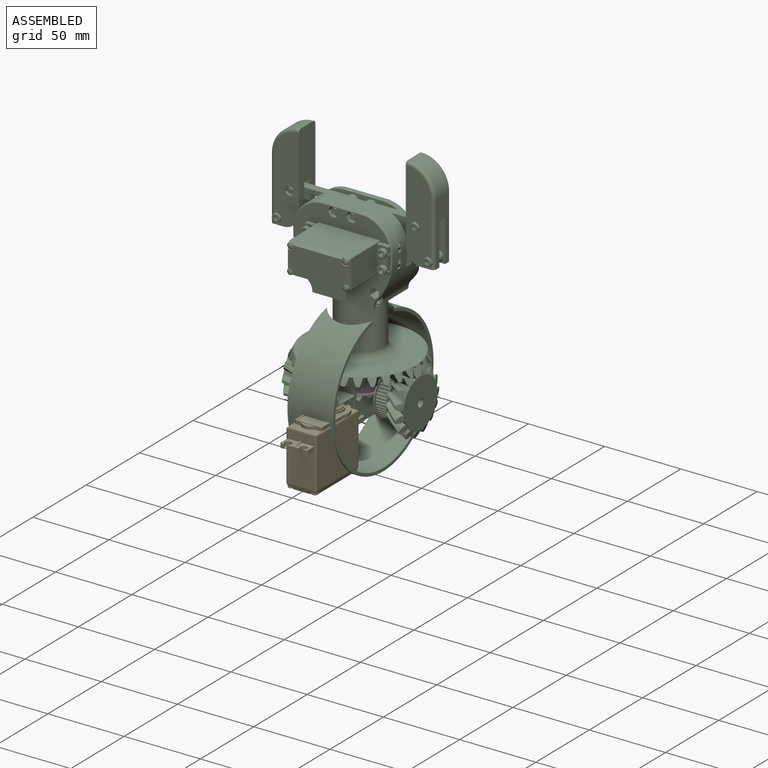
[diagram: assembled view]
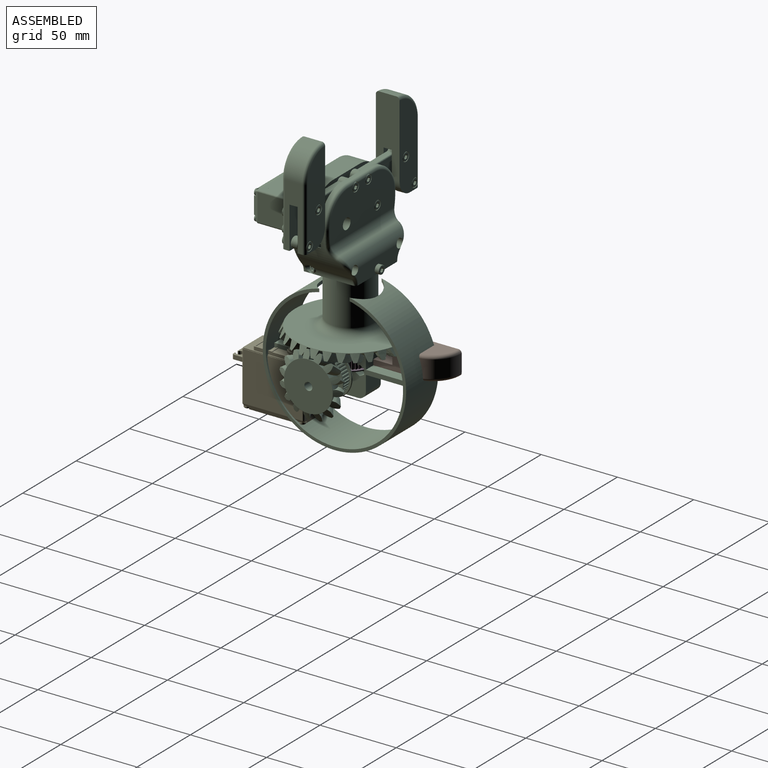
[diagram: assembled view, second angle]
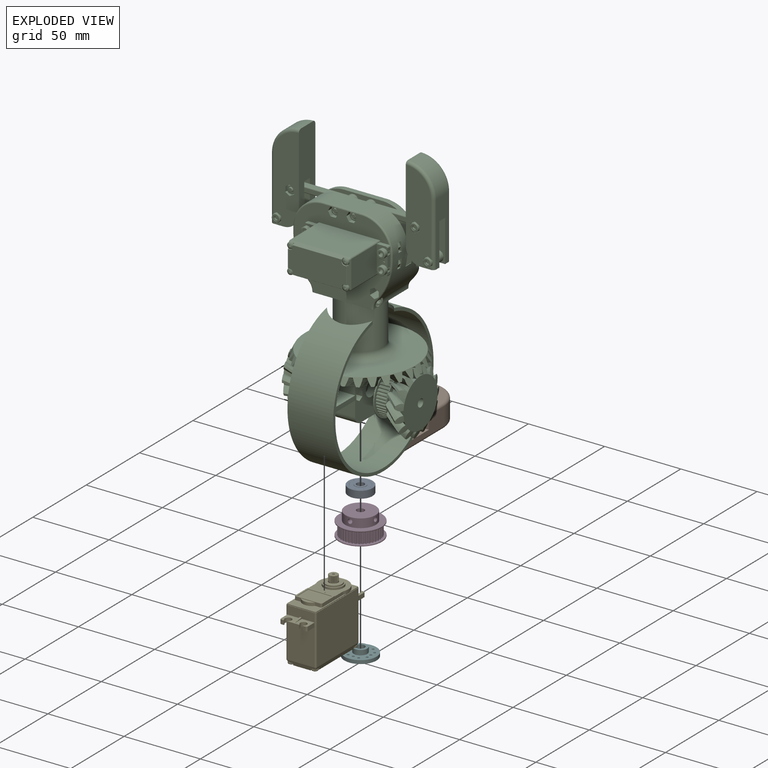
[diagram: exploded view]
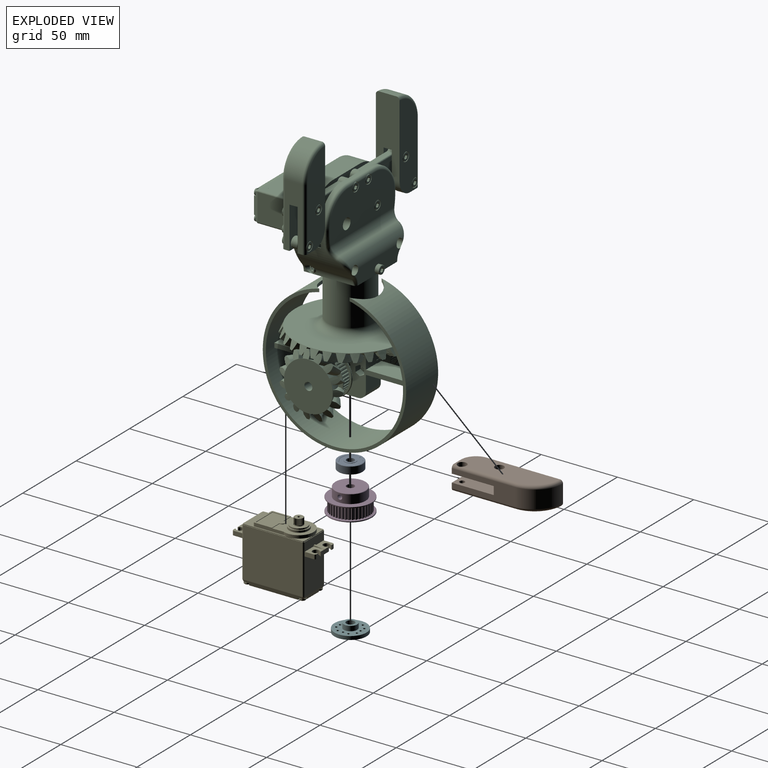
[diagram: exploded view, second angle]
FCSTD DOCUMENT  (FreeCAD 0.19R24276 (Git))
Label: AssemblyArt56
License: All rights reserved
LicenseURL: http://en.wikipedia.org/wiki/All_rights_reserved
objects: Part::FeaturePython×43, App::Link×20, PartDesign::CoordinateSystem×12, PartDesign::Line×8, App::DocumentObjectGroup×7, App::Part×6, Part::Feature×4, App::FeaturePython×1, Part::Part2DObjectPython×1, Part::Mirroring×1
note: 69 computed B-rep shape members (.brp) not serialized (recipe doc carries the construction recipe, not evaluated geometry)
EXTERNAL_REF file=Art56MotorCoverRing.FCStd obj=LCS_Art56MotorCoverRing
EXTERNAL_REF file=Art56MotorCoverRing.FCStd obj=Body
EXTERNAL_REF file=Art56MotorCoverRing.FCStd obj=LCS_BearingFix
EXTERNAL_REF file=CommonBearingFixThrough.FCStd obj=LCS_CommonBearingFixThrough
EXTERNAL_REF file=CommonBearingFixThrough.FCStd obj=Body
EXTERNAL_REF file=Art56GearPlate.FCStd obj=LCS_Art56GearPlate
EXTERNAL_REF file=Art56MotorCoverRing.FCStd obj=LCS_BigGear
EXTERNAL_REF file=Art56GearPlate.FCStd obj=Body
EXTERNAL_REF file=Art56MotorCoverRing.FCStd obj=LCS_SmallGear2
EXTERNAL_REF file=Art56SmallGear.FCStd obj=LCS_Art56SmallGear
EXTERNAL_REF file=Art56SmallGear.FCStd obj=Body
EXTERNAL_REF file=Art56MotorCoverRing.FCStd obj=LCS_SmallGear1
EXTERNAL_REF file=Art56GearPlate.FCStd obj=LCS_Bearing
EXTERNAL_REF file=Art56MotorCoverRing.FCStd obj=LCS_Bearing
EXTERNAL_REF file=Art56SmallGear.FCStd obj=LCS_Pulley
EXTERNAL_REF file=Art56GearPlate.FCStd obj=HoleAxis_2
EXTERNAL_REF file=Art56MotorCoverRing.FCStd obj=HoleAxis_2
EXTERNAL_REF file=Art56MotorCoverRing.FCStd obj=HoleAxis_1
EXTERNAL_REF file=Art56GearPlate.FCStd obj=HoleAxis_1
EXTERNAL_REF file=Art56GearPlate.FCStd obj=HoleAxis_3
EXTERNAL_REF file=Art56SmallGear.FCStd obj=HoleAxis_1
EXTERNAL_REF file=CommonBearingFixThrough.FCStd obj=HoleAxis_1
EXTERNAL_REF file=CommonBearingFixThrough.FCStd obj=HoleAxis_2
EXTERNAL_REF file=Art56MotorCoverRing.FCStd obj=HoleAxis_3
EXTERNAL_REF file=Art56GearPlate.FCStd obj=LCS_Gripper
EXTERNAL_REF file=GripperBot.FCStd obj=LCS_GripperBot
EXTERNAL_REF file=GripperBot.FCStd obj=Body
EXTERNAL_REF file=GripperBot.FCStd obj=LCS_GripperTop
EXTERNAL_REF file=GripperTop.FCStd obj=LCS_GripperTop
EXTERNAL_REF file=GripperTop.FCStd obj=Body
EXTERNAL_REF file=GripperBot.FCStd obj=LCS_Servomotor
EXTERNAL_REF file=GripperActiveArm.FCStd obj=LCS_GripperActiveArm
EXTERNAL_REF file=GripperActiveArm.FCStd obj=Body
EXTERNAL_REF file=GripperBot.FCStd obj=LCS_PassiveArm
EXTERNAL_REF file=GripperPassiveArm.FCStd obj=LCS_GripperPassiveArm
EXTERNAL_REF file=GripperPassiveArm.FCStd obj=Body
EXTERNAL_REF file=GripperArm.FCStd obj=LCS_GripperArm
EXTERNAL_REF file=GripperBot.FCStd obj=LCS_Arm1
EXTERNAL_REF file=GripperArm.FCStd obj=Body
EXTERNAL_REF file=GripperBot.FCStd obj=LCS_Arm2
EXTERNAL_REF file=GripperBot.FCStd obj=HoleAxis_9
EXTERNAL_REF file=GripperBot.FCStd obj=HoleAxis_8
EXTERNAL_REF file=GripperBot.FCStd obj=HoleAxis_3
EXTERNAL_REF file=GripperBot.FCStd obj=HoleAxis_4
EXTERNAL_REF file=GripperBot.FCStd obj=HoleAxis_6
EXTERNAL_REF file=GripperBot.FCStd obj=HoleAxis_7
EXTERNAL_REF file=GripperBot.FCStd obj=HoleAxis_11
EXTERNAL_REF file=GripperBot.FCStd obj=HoleAxis_10
EXTERNAL_REF file=GripperBot.FCStd obj=HoleAxis_5
EXTERNAL_REF file=GripperTop.FCStd obj=HoleAxis_5
EXTERNAL_REF file=GripperTop.FCStd obj=HoleAxis_6
EXTERNAL_REF file=GripperTop.FCStd obj=HoleAxis_2
EXTERNAL_REF file=GripperTop.FCStd obj=HoleAxis_3
EXTERNAL_REF file=GripperTop.FCStd obj=HoleAxis_4
EXTERNAL_REF file=GripperTop.FCStd obj=HoleAxis_1
EXTERNAL_REF file=GripperBot.FCStd obj=HoleAxis_1
EXTERNAL_REF file=GripperBot.FCStd obj=HoleAxis_2
EXTERNAL_REF file=GripperArm.FCStd obj=LCS_GripperArm_1
EXTERNAL_REF file=GripperFinger.FCStd obj=LCS_GripperFinger
EXTERNAL_REF file=GripperFinger.FCStd obj=Body
EXTERNAL_REF file=GripperFinger.FCStd obj=HoleAxis_3
EXTERNAL_REF file=GripperFinger.FCStd obj=HoleAxis_4
EXTERNAL_REF file=GripperFinger.FCStd obj=HoleAxis_1
EXTERNAL_REF file=GripperFinger.FCStd obj=HoleAxis_2
EXTERNAL_REF file=GripperActiveArm.FCStd obj=HoleAxis_3
EXTERNAL_REF file=GripperActiveArm.FCStd obj=HoleAxis_2
EXTERNAL_REF file=GripperActiveArm.FCStd obj=HoleAxis_1

FEATURE [PartDesign::CoordinateSystem] LCS_Origin
  AttacherType = Attacher::AttachEngine3D
  MapMode = 2
  Support = -> [X_Axis]
FEATURE [App::DocumentObjectGroup] Constraints
FEATURE [App::FeaturePython] Variables  # WARN: FeaturePython — macro-defined, semantics opaque (R4)
FEATURE [App::Link] Art56MotorCoverRing_Art56MotorCoverRing
  AssemblyType = Asm4EE
  AttachedBy = #LCS_Art56MotorCoverRing
  AttachedTo = Parent Assembly#LCS_Origin
  AttachmentOffset = pos=(0,0,0) rot=(0,1,0;4.71239rad)
  ElementCount = 0
  LinkPlacement = pos=(0,0,0) rot=(0.57735,-0.57735,0.57735;4.18879rad)
  LinkTransform = false
  Placement = pos=(0,0,0) rot=(0.57735,-0.57735,0.57735;4.18879rad)
  Scale = 1
  ScaleVector = (1,1,1)
  ShowElement = true
  expr: Placement = LCS_Origin.Placement * AttachmentOffset * Art56MotorCoverRing#LCS_Art56MotorCoverRing.Placement ^ -1
FEATURE [App::Link] CommonBearingFixThrough_CommonBearingFixThrough
  AssemblyType = Asm4EE
  AttachedBy = #LCS_CommonBearingFixThrough
  AttachedTo = Art56MotorCoverRing_Art56MotorCoverRing#LCS_BearingFix
  AttachmentOffset = pos=(0,0,0) rot=(1,0,0;3.14159rad)
  ElementCount = 0
  LinkPlacement = pos=(-3,-1.88e-14,-8e-16) rot=(-0.57735,-0.57735,0.57735;2.0944rad)
  LinkTransform = false
  Placement = pos=(-3,-1.88e-14,-8e-16) rot=(-0.57735,-0.57735,0.57735;2.0944rad)
  Scale = 1
  ScaleVector = (1,1,1)
  ShowElement = true
  expr: Placement = Art56MotorCoverRing_Art56MotorCoverRing.Placement * Art56MotorCoverRing#LCS_BearingFix.Placement * AttachmentOffset * CommonBearingFixThrough#LCS_CommonBearingFixThrough.Placement ^ -1
FEATURE [App::Link] Art56GearPlate_Art56GearPlate
  AssemblyType = Asm4EE
  AttachedBy = #LCS_Art56GearPlate
  AttachedTo = Art56MotorCoverRing_Art56MotorCoverRing#LCS_BigGear
  AttachmentOffset = pos=(0,0,0) rot=(0.258819,-0.965926,0;3.14159rad)
  ElementCount = 0
  LinkPlacement = pos=(-1.06e-14,1.1e-15,21.5) rot=(-0.866025,0.5,0;3.14159rad)
  LinkTransform = false
  Placement = pos=(-1.06e-14,1.1e-15,21.5) rot=(-0.866025,0.5,0;3.14159rad)
  Scale = 1
  ScaleVector = (1,1,1)
  ShowElement = true
  expr: Placement = Art56MotorCoverRing_Art56MotorCoverRing.Placement * Art56MotorCoverRing#LCS_BigGear.Placement * AttachmentOffset * Art56GearPlate#LCS_Art56GearPlate.Placement ^ -1
FEATURE [App::Link] Art56SmallGear_Art56SmallGear
  AssemblyType = Asm4EE
  AttachedBy = #LCS_Art56SmallGear
  AttachedTo = Art56MotorCoverRing_Art56MotorCoverRing#LCS_SmallGear2
  AttachmentOffset = pos=(0,0,0) rot=(0.113203,-0.993572,0;3.14159rad)
  ElementCount = 0
  LinkPlacement = pos=(-39.4,6.86696e-05,-1.58536e-05) rot=(-0.616308,0.490234,-0.616308;2.22999rad)
  LinkTransform = false
  Placement = pos=(-39.4,6.86696e-05,-1.58536e-05) rot=(-0.616308,0.490234,-0.616308;2.22999rad)
  Scale = 1
  ScaleVector = (1,1,1)
  ShowElement = true
  expr: Placement = Art56MotorCoverRing_Art56MotorCoverRing.Placement * Art56MotorCoverRing#LCS_SmallGear2.Placement * AttachmentOffset * Art56SmallGear#LCS_Art56SmallGear.Placement ^ -1
FEATURE [App::Link] Art56SmallGear_Art56SmallGear001
  AssemblyType = Asm4EE
  AttachedBy = #LCS_Art56SmallGear
  AttachedTo = Art56MotorCoverRing_Art56MotorCoverRing#LCS_SmallGear1
  ElementCount = 0
  LinkPlacement = pos=(39.4,7.04758e-05,1.76e-14) rot=(-0.57735,0.57735,0.57735;4.18879rad)
  LinkTransform = false
  Placement = pos=(39.4,7.04758e-05,1.76e-14) rot=(-0.57735,0.57735,0.57735;4.18879rad)
  Scale = 1
  ScaleVector = (1,1,1)
  ShowElement = true
  expr: Placement = Art56MotorCoverRing_Art56MotorCoverRing.Placement * Art56MotorCoverRing#LCS_SmallGear1.Placement * AttachmentOffset * Art56SmallGear#LCS_Art56SmallGear.Placement ^ -1
FEATURE [PartDesign::CoordinateSystem] LCS_0
  AttacherType = Attacher::AttachEngine3D
  MapMode = 2
  Support = -> [X_Axis003]
FEATURE [Part::Feature] Compound001  label="Bearing 625ZZ"
FEATURE [App::Part] Bearing_625ZZ
  Group = -> [LCS_0,Compound001]
  Origin = -> Origin003
FEATURE [App::DocumentObjectGroup] Group002  label="Bearing"
  Group = -> [Bearing_625ZZ]
FEATURE [App::Link] Bearing_625ZZ001
  AssemblyType = Asm4EE
  AttachedBy = #LCS_0
  AttachedTo = Art56GearPlate_Art56GearPlate#LCS_Bearing
  ElementCount = 0
  LinkPlacement = pos=(-9.1e-15,2e-15,21.5) rot=(0,0,-1;1.0472rad)
  LinkTransform = false
  Placement = pos=(-9.1e-15,2e-15,21.5) rot=(0,0,-1;1.0472rad)
  Scale = 1
  ScaleVector = (1,1,1)
  ShowElement = true
  expr: Placement = Art56GearPlate_Art56GearPlate.Placement * Art56GearPlate#LCS_Bearing.Placement * AttachmentOffset * LCS_0.Placement ^ -1
FEATURE [App::Link] Bearing_625ZZ002
  AssemblyType = Asm4EE
  AttachedBy = #LCS_0
  AttachedTo = Art56MotorCoverRing_Art56MotorCoverRing#LCS_Bearing
  ElementCount = 0
  LinkPlacement = pos=(2,6e-16,1e-15) rot=(-0.685101,-0.247533,0.685101;2.65628rad)
  LinkTransform = false
  Placement = pos=(2,6e-16,1e-15) rot=(-0.685101,-0.247533,0.685101;2.65628rad)
  Scale = 1
  ScaleVector = (1,1,1)
  ShowElement = true
  expr: Placement = Art56MotorCoverRing_Art56MotorCoverRing.Placement * Art56MotorCoverRing#LCS_Bearing.Placement * AttachmentOffset * LCS_0.Placement ^ -1
FEATURE [Part::Feature] Cut002004  label="GT2x40Pulley"
FEATURE [PartDesign::CoordinateSystem] LCS_Pulley_GT2x40
  AttacherType = Attacher::AttachEngine3D
  MapMode = 11
  Placement = pos=(0,0,15) rot=(0,0,1;1.5708rad)
  Support = -> [Cut002004]
FEATURE [App::Part] Pulley_GT2x40
  Group = -> [Cut002004,LCS_Pulley_GT2x40]
  Origin = -> Origin004
FEATURE [App::DocumentObjectGroup] Group  label="Pulleys"
  Group = -> [Pulley_GT2x40]
FEATURE [App::Link] Pulley_GT2x40001
  AssemblyType = Asm4EE
  AttachedBy = #LCS_Pulley_GT2x40
  AttachedTo = Art56SmallGear_Art56SmallGear#LCS_Pulley
  AttachmentOffset = pos=(0,0,0) rot=(0.803857,-0.594823,0;3.14159rad)
  ElementCount = 0
  LinkPlacement = pos=(-18,6.86696e-05,-1.58536e-05) rot=(0.706891,0.024685,-0.706891;3.19095rad)
  LinkTransform = false
  Placement = pos=(-18,6.86696e-05,-1.58536e-05) rot=(0.706891,0.024685,-0.706891;3.19095rad)
  Scale = 1
  ScaleVector = (1,1,1)
  ShowElement = true
  expr: Placement = Art56SmallGear_Art56SmallGear.Placement * Art56SmallGear#LCS_Pulley.Placement * AttachmentOffset * LCS_Pulley_GT2x40.Placement ^ -1
FEATURE [App::Link] Pulley_GT2x40002
  AssemblyType = Asm4EE
  AttachedBy = #LCS_Pulley_GT2x40
  AttachedTo = Art56SmallGear_Art56SmallGear001#LCS_Pulley
  AttachmentOffset = pos=(0,0,0) rot=(0.803857,-0.594823,0;3.14159rad)
  ElementCount = 0
  LinkPlacement = pos=(18,7.04758e-05,1.17e-14) rot=(-0.703191,-0.105093,-0.703191;3.35101rad)
  LinkTransform = false
  Placement = pos=(18,7.04758e-05,1.17e-14) rot=(-0.703191,-0.105093,-0.703191;3.35101rad)
  Scale = 1
  ScaleVector = (1,1,1)
  ShowElement = true
  expr: Placement = Art56SmallGear_Art56SmallGear001.Placement * Art56SmallGear#LCS_Pulley.Placement * AttachmentOffset * LCS_Pulley_GT2x40.Placement ^ -1
FEATURE [Part::FeaturePython] Nut  label="M3-Nut"  # WARN: FeaturePython — macro-defined, semantics opaque (R4)
  AssemblyType = Asm4EE
  AttachedBy = Origin
  AttachedTo = Art56GearPlate_Art56GearPlate#HoleAxis_2
  AttachmentOffset = pos=(0,0,0) rot=(0,0,1;1.5708rad)
  Placement = pos=(-10.8253,-6.25,59.5) rot=(-0.250563,0.935113,0.250563;1.63783rad)
  diameter = 4
  invert = false
  matchOuter = false
  offset = 0
  thread = false
  type = 7
  expr: Placement = Art56GearPlate_Art56GearPlate.Placement * Art56GearPlate#HoleAxis_2.Placement * AttachmentOffset
FEATURE [Part::FeaturePython] Nut001  label="M3-Nut019"  # WARN: FeaturePython — macro-defined, semantics opaque (R4)
  AssemblyType = Asm4EE
  AttachedBy = Origin
  AttachedTo = Art56MotorCoverRing_Art56MotorCoverRing#HoleAxis_2
  AttachmentOffset = pos=(0,0,0) rot=(0.707107,-0.707107,0;3.14159rad)
  Placement = pos=(-3e-15,11,-3e-15) rot=(0,1,0;1.5708rad)
  diameter = 4
  invert = false
  matchOuter = false
  offset = 0
  thread = false
  type = 7
  expr: Placement = Art56MotorCoverRing_Art56MotorCoverRing.Placement * Art56MotorCoverRing#HoleAxis_2.Placement * AttachmentOffset
FEATURE [Part::FeaturePython] Nut002  label="M3-Nut018"  # WARN: FeaturePython — macro-defined, semantics opaque (R4)
  AssemblyType = Asm4EE
  AttachedBy = Origin
  AttachedTo = Art56MotorCoverRing_Art56MotorCoverRing#HoleAxis_1
  AttachmentOffset = pos=(0,0,0) rot=(0.707107,-0.707107,0;3.14159rad)
  Placement = pos=(0,-11,3e-15) rot=(0,1,0;1.5708rad)
  diameter = 4
  invert = false
  matchOuter = false
  offset = 0
  thread = false
  type = 7
  expr: Placement = Art56MotorCoverRing_Art56MotorCoverRing.Placement * Art56MotorCoverRing#HoleAxis_1.Placement * AttachmentOffset
FEATURE [Part::FeaturePython] Nut003  label="M3-Nut218"  # WARN: FeaturePython — macro-defined, semantics opaque (R4)
  AssemblyType = Asm4EE
  AttachedBy = Origin
  AttachedTo = Art56GearPlate_Art56GearPlate#HoleAxis_1
  AttachmentOffset = pos=(0,0,0) rot=(0,0,1;1.5708rad)
  Placement = pos=(10.8253,-6.25,59.5) rot=(-0.694747,0.186157,0.694747;2.77349rad)
  diameter = 4
  invert = false
  matchOuter = false
  offset = 0
  thread = false
  type = 7
  expr: Placement = Art56GearPlate_Art56GearPlate.Placement * Art56GearPlate#HoleAxis_1.Placement * AttachmentOffset
FEATURE [Part::FeaturePython] Nut004  label="M3-Nut219"  # WARN: FeaturePython — macro-defined, semantics opaque (R4)
  AssemblyType = Asm4EE
  AttachedBy = Origin
  AttachedTo = Art56GearPlate_Art56GearPlate#HoleAxis_3
  AttachmentOffset = pos=(0,0,0) rot=(0,0,1;1.5708rad)
  Placement = pos=(2.3e-14,12.5,59.5) rot=(0.57735,0.57735,-0.57735;2.0944rad)
  diameter = 4
  invert = false
  matchOuter = false
  offset = 0
  thread = false
  type = 7
  expr: Placement = Art56GearPlate_Art56GearPlate.Placement * Art56GearPlate#HoleAxis_3.Placement * AttachmentOffset
FEATURE [Part::FeaturePython] Screw  label="M5x16-Screw"  # WARN: FeaturePython — macro-defined, semantics opaque (R4)
  AssemblyType = Asm4EE
  AttachedBy = Origin
  AttachedTo = Art56GearPlate_Art56GearPlate#LCS_Bearing
  AttachmentOffset = pos=(0,0,5) rot=(0,0,1;0rad)
  Placement = pos=(-1e-14,2e-15,26.5) rot=(0,0,-1;1.0472rad)
  diameter = 6
  invert = false
  length = 4
  lengthCustom = 16
  matchOuter = false
  offset = 0
  thread = false
  type = 33
  expr: Placement = Art56GearPlate_Art56GearPlate.Placement * Art56GearPlate#LCS_Bearing.Placement * AttachmentOffset
FEATURE [Part::FeaturePython] Screw001  label="M3x6-Screw"  # WARN: FeaturePython — macro-defined, semantics opaque (R4)
  AssemblyType = Asm4EE
  AttachedBy = Origin
  AttachedTo = Art56SmallGear_Art56SmallGear#HoleAxis_1
  AttachmentOffset = pos=(0,0,0) rot=(1,0,0;3.14159rad)
  Placement = pos=(-30.25,0.76739,-10.9732) rot=(0.706891,-0.706891,-0.024685;3.19095rad)
  diameter = 4
  invert = false
  length = 1
  lengthCustom = 6
  matchOuter = false
  offset = 0
  thread = false
  type = 33
  expr: Placement = Art56SmallGear_Art56SmallGear.Placement * Art56SmallGear#HoleAxis_1.Placement * AttachmentOffset
FEATURE [Part::FeaturePython] Screw002  label="M3x8-Screw"  # WARN: FeaturePython — macro-defined, semantics opaque (R4)
  AssemblyType = Asm4EE
  AttachedBy = Origin
  AttachedTo = CommonBearingFixThrough_CommonBearingFixThrough#HoleAxis_1
  AttachmentOffset = pos=(0,0,0) rot=(1,0,0;3.14159rad)
  Placement = pos=(-4,-11,2e-15) rot=(0.57735,0.57735,-0.57735;4.18879rad)
  diameter = 4
  invert = false
  length = 2
  lengthCustom = 8
  matchOuter = false
  offset = 0
  thread = false
  type = 33
  expr: Placement = CommonBearingFixThrough_CommonBearingFixThrough.Placement * CommonBearingFixThrough#HoleAxis_1.Placement * AttachmentOffset
FEATURE [Part::FeaturePython] Screw003  label="M3x8-Screw001"  # WARN: FeaturePython — macro-defined, semantics opaque (R4)
  AssemblyType = Asm4EE
  AttachedBy = Origin
  AttachedTo = CommonBearingFixThrough_CommonBearingFixThrough#HoleAxis_2
  AttachmentOffset = pos=(0,0,0) rot=(1,0,0;3.14159rad)
  Placement = pos=(-4,11,-4e-15) rot=(0.57735,0.57735,-0.57735;4.18879rad)
  diameter = 4
  invert = false
  length = 2
  lengthCustom = 8
  matchOuter = false
  offset = 0
  thread = false
  type = 33
  expr: Placement = CommonBearingFixThrough_CommonBearingFixThrough.Placement * CommonBearingFixThrough#HoleAxis_2.Placement * AttachmentOffset
FEATURE [Part::FeaturePython] Screw004  label="M3x6-Screw001"  # WARN: FeaturePython — macro-defined, semantics opaque (R4)
  AssemblyType = Asm4EE
  AttachedBy = Origin
  AttachedTo = Art56SmallGear_Art56SmallGear001#HoleAxis_1
  AttachmentOffset = pos=(0,0,0) rot=(1,0,0;3.14159rad)
  Placement = pos=(30.25,3.21616,10.5194) rot=(-0.146221,-0.146221,-0.978386;1.59265rad)
  diameter = 4
  invert = false
  length = 1
  lengthCustom = 6
  matchOuter = false
  offset = 0
  thread = false
  type = 33
  expr: Placement = Art56SmallGear_Art56SmallGear001.Placement * Art56SmallGear#HoleAxis_1.Placement * AttachmentOffset
FEATURE [Part::FeaturePython] Nut005  label="M5-Nut"  # WARN: FeaturePython — macro-defined, semantics opaque (R4)
  AssemblyType = Asm4EE
  AttachedBy = Origin
  AttachedTo = Art56MotorCoverRing_Art56MotorCoverRing#HoleAxis_3
  AttachmentOffset = pos=(0,0,0) rot=(1,0,0;3.14159rad)
  Placement = pos=(-4e-15,4e-15,14) rot=(0.707107,-0.707107,0;3.14159rad)
  diameter = 3
  invert = false
  matchOuter = false
  offset = 0
  thread = false
  type = 5
  expr: Placement = Art56MotorCoverRing_Art56MotorCoverRing.Placement * Art56MotorCoverRing#HoleAxis_3.Placement * AttachmentOffset
FEATURE [PartDesign::CoordinateSystem] LCS_Art4Fix
  AttacherType = Attacher::AttachEngine3D
  MapMode = 0
FEATURE [PartDesign::CoordinateSystem] LCS_0001
  AttacherType = Attacher::AttachEngine3D
  MapMode = 2
  Support = -> [X_Axis005]
FEATURE [Part::Feature] Compound002  label="Servomotor001"
FEATURE [PartDesign::Line] HoleAxis_1
  AttacherType = Attacher::AttachEngineLine
  Length = 5.94263
  MapMode = 19
  Placement = pos=(9,-16.4104,-12.15) rot=(0,0,1;2.17509rad)
  ResizeMode = 1
  Support = -> [Compound002]
FEATURE [PartDesign::Line] HoleAxis_2
  AttacherType = Attacher::AttachEngineLine
  Length = 4.57317
  MapMode = 19
  Placement = pos=(-1,-16.4104,-12.15) rot=(-0.885489,-0.46466,0;3.14159rad)
  ResizeMode = 1
  Support = -> [Compound002]
FEATURE [PartDesign::Line] HoleAxis_3
  AttacherType = Attacher::AttachEngineLine
  Length = 5.94263
  MapMode = 19
  Placement = pos=(9,-66.1896,-12.15) rot=(-0.46466,0.885489,0;3.14159rad)
  ResizeMode = 1
  Support = -> [Compound002]
FEATURE [PartDesign::Line] HoleAxis_4
  AttacherType = Attacher::AttachEngineLine
  Length = 5.94263
  MapMode = 19
  Placement = pos=(-1,-66.1896,-12.15) rot=(0,0,-1;0.966502rad)
  ResizeMode = 1
  Support = -> [Compound002]
FEATURE [Part::Feature] Clone041003009009001  label="WheelHorn"
FEATURE [PartDesign::CoordinateSystem] LCS_0002
  AttacherType = Attacher::AttachEngine3D
  MapMode = 2
  Support = -> [X_Axis006]
FEATURE [PartDesign::CoordinateSystem] LCS_ServomotorWheelHorn
  AttacherType = Attacher::AttachEngine3D
  MapMode = 11
  Placement = pos=(0,0,2.3) rot=(0,0,1;1.5708rad)
  Support = -> [Clone041003009009001]
FEATURE [PartDesign::CoordinateSystem] LCS_ActiveArm
  AttacherType = Attacher::AttachEngine3D
  MapMode = 45
  Support = -> [Clone041003009009001]
FEATURE [App::Part] ServomotorWheelHorn
  Group = -> [LCS_0002,Clone041003009009001,LCS_ServomotorWheelHorn,LCS_ActiveArm]
  Origin = -> Origin006
FEATURE [App::Link] GripperBot_GripperBot
  AssemblyType = Asm4EE
  AttachedBy = #LCS_GripperBot
  AttachedTo = Art56GearPlate_Art56GearPlate#LCS_Gripper
  AttachmentOffset = pos=(0,0,1) rot=(0.984808,-0.173648,0;3.14159rad)
  ElementCount = 0
  LinkPlacement = pos=(0.0466674,-17.1499,56.5) rot=(0.000962,-0.707106,-0.707106;3.13967rad)
  LinkTransform = false
  Placement = pos=(0.0466674,-17.1499,56.5) rot=(0.000962,-0.707106,-0.707106;3.13967rad)
  Scale = 1
  ScaleVector = (1,1,1)
  ShowElement = true
  expr: Placement = Art56GearPlate_Art56GearPlate.Placement * Art56GearPlate#LCS_Gripper.Placement * AttachmentOffset * GripperBot#LCS_GripperBot.Placement ^ -1
FEATURE [App::Link] Unnamed_GripperTop
  AssemblyType = Asm4EE
  AttachedBy = #LCS_GripperTop
  AttachedTo = GripperBot_GripperBot#LCS_GripperTop
  ElementCount = 0
  LinkPlacement = pos=(-0.007211,2.64999,56.5) rot=(0.000962,-0.707106,-0.707106;3.13967rad)
  LinkTransform = false
  Placement = pos=(-0.007211,2.64999,56.5) rot=(0.000962,-0.707106,-0.707106;3.13967rad)
  Scale = 1
  ScaleVector = (1,1,1)
  ShowElement = true
  expr: Placement = GripperBot_GripperBot.Placement * GripperBot#LCS_GripperTop.Placement * AttachmentOffset * GripperTop#LCS_GripperTop.Placement ^ -1
FEATURE [Part::Part2DObjectPython] Wire  # WARN: FeaturePython — macro-defined, semantics opaque (R4)
  Area = 0
  AttacherType = Attacher::AttachEnginePlane
  ChamferSize = 0
  Closed = true
  End = (9,-16.4104,-9.35)
  FilletRadius = 0
  Length = 119.558
  MakeFace = false
  MapMode = 0
  Placement = pos=(9,-66.1896,-9.35) rot=(0,0,1;0rad)
  Start = (9,-66.1896,-9.35)
  Subdivisions = 0
FEATURE [PartDesign::CoordinateSystem] LCS_WheelHorn
  AttacherType = Attacher::AttachEngine3D
  MapMode = 11
  Placement = pos=(4,-31,5.35) rot=(0,0,1;3.13671rad)
  Support = -> [Compound002]
FEATURE [PartDesign::CoordinateSystem] LCS_Servomotor
  AttacherType = Attacher::AttachEngine3D
  MapMode = 45
  Placement = pos=(4,-41.3,-9.35) rot=(0,0,1;0rad)
  Support = -> [Wire]
FEATURE [App::Part] Servomotor
  Group = -> [LCS_0001,Compound002,HoleAxis_1,HoleAxis_2,HoleAxis_3,HoleAxis_4,LCS_WheelHorn,Wire,LCS_Servomotor]
  Origin = -> Origin005
FEATURE [App::DocumentObjectGroup] Group004  label="Electronics"
  Group = -> [Servomotor,ServomotorWheelHorn]
FEATURE [App::Link] Servomotor001  label="Servomotor002"
  AssemblyType = Asm4EE
  AttachedBy = #LCS_Servomotor
  AttachedTo = GripperBot_GripperBot#LCS_Servomotor
  ElementCount = 0
  LinkPlacement = pos=(45.5361,-7.67612,85) rot=(-0.576826,-0.578398,-0.576826;2.09282rad)
  LinkTransform = false
  Placement = pos=(45.5361,-7.67612,85) rot=(-0.576826,-0.578398,-0.576826;2.09282rad)
  Scale = 1
  ScaleVector = (1,1,1)
  ShowElement = true
  expr: Placement = GripperBot_GripperBot.Placement * GripperBot#LCS_Servomotor.Placement * AttachmentOffset * LCS_Servomotor.Placement ^ -1
FEATURE [App::Link] ServomotorWheelHorn001
  AssemblyType = Asm4EE
  AttachedBy = #LCS_ServomotorWheelHorn
  AttachedTo = Servomotor001#LCS_WheelHorn
  AttachmentOffset = pos=(0,0,0) rot=(1,0,0;3.14159rad)
  ElementCount = 0
  LinkPlacement = pos=(14.5154,-0.110502,89) rot=(0.000763,0.707109,-0.707104;3.13622rad)
  LinkTransform = false
  Placement = pos=(14.5154,-0.110502,89) rot=(0.000763,0.707109,-0.707104;3.13622rad)
  Scale = 1
  ScaleVector = (1,1,1)
  ShowElement = true
  expr: Placement = Servomotor001.Placement * LCS_WheelHorn.Placement * AttachmentOffset * LCS_ServomotorWheelHorn.Placement ^ -1
FEATURE [App::Link] GripperActiveArm_GripperActiveArm
  AssemblyType = Asm4EE
  AttachedBy = #LCS_GripperActiveArm
  AttachedTo = ServomotorWheelHorn001#LCS_ActiveArm
  AttachmentOffset = pos=(0,0,0) rot=(0,-1,0;3.14159rad)
  ElementCount = 0
  LinkPlacement = pos=(14.5216,-2.41049,89) rot=(-0.999992,-0.003801,-0.00108;1.5708rad)
  LinkTransform = false
  Placement = pos=(14.5216,-2.41049,89) rot=(-0.999992,-0.003801,-0.00108;1.5708rad)
  Scale = 1
  ScaleVector = (1,1,1)
  ShowElement = true
  expr: Placement = ServomotorWheelHorn001.Placement * LCS_ActiveArm.Placement * AttachmentOffset * GripperActiveArm#LCS_GripperActiveArm.Placement ^ -1
FEATURE [App::Link] Unnamed3_GripperPassiveArm
  AssemblyType = Asm4EE
  AttachedBy = #LCS_GripperPassiveArm
  AttachedTo = GripperBot_GripperBot#LCS_PassiveArm
  AttachmentOffset = pos=(0,0,0) rot=(0,0,1;6.16538rad)
  ElementCount = 0
  LinkPlacement = pos=(-14.4927,-2.68945,89) rot=(-0.042624,0.706407,0.706521;3.06024rad)
  LinkTransform = false
  Placement = pos=(-14.4927,-2.68945,89) rot=(-0.042624,0.706407,0.706521;3.06024rad)
  Scale = 1
  ScaleVector = (1,1,1)
  ShowElement = true
  expr: Placement = GripperBot_GripperBot.Placement * GripperBot#LCS_PassiveArm.Placement * AttachmentOffset * GripperPassiveArm#LCS_GripperPassiveArm.Placement ^ -1
FEATURE [App::Link] Unnamed2_GripperArm
  AssemblyType = Asm4EE
  AttachedBy = #LCS_GripperArm
  AttachedTo = GripperBot_GripperBot#LCS_Arm1
  AttachmentOffset = pos=(0,0,0) rot=(0.707107,-0.707107,0;3.14159rad)
  ElementCount = 0
  LinkPlacement = pos=(-5.99277,-2.66632,107.5) rot=(-0.577873,0.576303,0.577873;2.09597rad)
  LinkTransform = false
  Placement = pos=(-5.99277,-2.66632,107.5) rot=(-0.577873,0.576303,0.577873;2.09597rad)
  Scale = 1
  ScaleVector = (1,1,1)
  ShowElement = true
  expr: Placement = GripperBot_GripperBot.Placement * GripperBot#LCS_Arm1.Placement * AttachmentOffset * GripperArm#LCS_GripperArm.Placement ^ -1
FEATURE [App::Link] Unnamed2_GripperArm001
  AssemblyType = Asm4EE
  AttachedBy = #LCS_GripperArm
  AttachedTo = GripperBot_GripperBot#LCS_Arm2
  AttachmentOffset = pos=(0,0,0) rot=(-0.707107,-0.707107,0;3.14159rad)
  ElementCount = 0
  LinkPlacement = pos=(6.00719,-2.63366,107.5) rot=(0.576826,0.578398,0.576826;4.19036rad)
  LinkTransform = false
  Placement = pos=(6.00719,-2.63366,107.5) rot=(0.576826,0.578398,0.576826;4.19036rad)
  Scale = 1
  ScaleVector = (1,1,1)
  ShowElement = true
  expr: Placement = GripperBot_GripperBot.Placement * GripperBot#LCS_Arm2.Placement * AttachmentOffset * GripperArm#LCS_GripperArm.Placement ^ -1
FEATURE [Part::FeaturePython] Nut011  label="M3-Nut213"  # WARN: FeaturePython — macro-defined, semantics opaque (R4)
  AssemblyType = Asm4EE
  AttachedBy = Origin
  AttachedTo = GripperBot_GripperBot#HoleAxis_9
  Placement = pos=(6.03032,-11.1336,107.5) rot=(-0.000962,0.707106,-0.707106;3.13967rad)
  diameter = 1
  invert = false
  matchOuter = false
  offset = 0
  thread = false
  type = 5
  expr: Placement = GripperBot_GripperBot.Placement * GripperBot#HoleAxis_9.Placement * AttachmentOffset
FEATURE [Part::FeaturePython] Nut012  label="M3-Nut215"  # WARN: FeaturePython — macro-defined, semantics opaque (R4)
  AssemblyType = Asm4EE
  AttachedBy = Origin
  AttachedTo = GripperBot_GripperBot#HoleAxis_8
  Placement = pos=(-5.96964,-11.1663,107.5) rot=(-0.000962,0.707106,-0.707106;3.13967rad)
  diameter = 1
  invert = false
  matchOuter = false
  offset = 0
  thread = false
  type = 5
  expr: Placement = GripperBot_GripperBot.Placement * GripperBot#HoleAxis_8.Placement * AttachmentOffset
FEATURE [Part::FeaturePython] Nut013  label="M3-Nut216"  # WARN: FeaturePython — macro-defined, semantics opaque (R4)
  AssemblyType = Asm4EE
  AttachedBy = Origin
  AttachedTo = GripperBot_GripperBot#HoleAxis_3
  AttachmentOffset = pos=(0,0,0) rot=(0.707107,-0.707107,0;3.14159rad)
  Placement = pos=(21.0148,-5.39284,66.5) rot=(0.576826,0.578398,-0.576826;2.09282rad)
  diameter = 4
  invert = false
  matchOuter = false
  offset = 0
  thread = false
  type = 7
  expr: Placement = GripperBot_GripperBot.Placement * GripperBot#HoleAxis_3.Placement * AttachmentOffset
FEATURE [Part::FeaturePython] Nut014  label="M3-Nut217"  # WARN: FeaturePython — macro-defined, semantics opaque (R4)
  AssemblyType = Asm4EE
  AttachedBy = Origin
  AttachedTo = GripperBot_GripperBot#HoleAxis_4
  AttachmentOffset = pos=(0,0,0) rot=(0.707107,-0.707107,0;3.14159rad)
  Placement = pos=(-20.9851,-5.50712,66.5) rot=(0.576826,0.578398,-0.576826;2.09282rad)
  diameter = 4
  invert = false
  matchOuter = false
  offset = 0
  thread = false
  type = 7
  expr: Placement = GripperBot_GripperBot.Placement * GripperBot#HoleAxis_4.Placement * AttachmentOffset
FEATURE [Part::FeaturePython] Nut015  label="M3-Nut214"  # WARN: FeaturePython — macro-defined, semantics opaque (R4)
  AssemblyType = Asm4EE
  AttachedBy = Origin
  AttachedTo = GripperBot_GripperBot#HoleAxis_6
  AttachmentOffset = pos=(0,0,0.6) rot=(0,0,1;0rad)
  Placement = pos=(29.1377,-8.32074,84) rot=(-0.000962,0.707106,-0.707106;3.13967rad)
  diameter = 4
  invert = false
  matchOuter = false
  offset = 0
  thread = false
  type = 7
  expr: Placement = GripperBot_GripperBot.Placement * GripperBot#HoleAxis_6.Placement * AttachmentOffset
FEATURE [Part::FeaturePython] Nut016  label="M3-Nut210"  # WARN: FeaturePython — macro-defined, semantics opaque (R4)
  AssemblyType = Asm4EE
  AttachedBy = Origin
  AttachedTo = GripperBot_GripperBot#HoleAxis_7
  AttachmentOffset = pos=(0,0,0.6) rot=(0,0,1;0rad)
  Placement = pos=(29.1377,-8.32074,94) rot=(-0.000962,0.707106,-0.707106;3.13967rad)
  diameter = 4
  invert = false
  matchOuter = false
  offset = 0
  thread = false
  type = 7
  expr: Placement = GripperBot_GripperBot.Placement * GripperBot#HoleAxis_7.Placement * AttachmentOffset
FEATURE [Part::FeaturePython] Nut017  label="M3-Nut211"  # WARN: FeaturePython — macro-defined, semantics opaque (R4)
  AssemblyType = Asm4EE
  AttachedBy = Origin
  AttachedTo = GripperBot_GripperBot#HoleAxis_11
  AttachmentOffset = pos=(0,0,0.6) rot=(0,0,1;0rad)
  Placement = pos=(-20.6621,-8.45626,84) rot=(-0.000962,0.707106,-0.707106;3.13967rad)
  diameter = 4
  invert = false
  matchOuter = false
  offset = 0
  thread = false
  type = 7
  expr: Placement = GripperBot_GripperBot.Placement * GripperBot#HoleAxis_11.Placement * AttachmentOffset
FEATURE [Part::FeaturePython] Nut018  label="M3-Nut212"  # WARN: FeaturePython — macro-defined, semantics opaque (R4)
  AssemblyType = Asm4EE
  AttachedBy = Origin
  AttachedTo = GripperBot_GripperBot#HoleAxis_10
  AttachmentOffset = pos=(0,0,0.6) rot=(0,0,1;0rad)
  Placement = pos=(-20.6621,-8.45626,94) rot=(-0.000962,0.707106,-0.707106;3.13967rad)
  diameter = 4
  invert = false
  matchOuter = false
  offset = 0
  thread = false
  type = 7
  expr: Placement = GripperBot_GripperBot.Placement * GripperBot#HoleAxis_10.Placement * AttachmentOffset
FEATURE [Part::FeaturePython] Nut006  label="M3-Nut222"  # WARN: FeaturePython — macro-defined, semantics opaque (R4)
  AssemblyType = Asm4EE
  AttachedBy = Origin
  AttachedTo = GripperBot_GripperBot#HoleAxis_5
  AttachmentOffset = pos=(0,0,0) rot=(0.707107,-0.707107,0;3.14159rad)
  Placement = pos=(-14.4851,-5.48944,89) rot=(-0.576826,-0.578398,0.576826;4.19036rad)
  diameter = 1
  invert = false
  matchOuter = false
  offset = 0
  thread = false
  type = 5
  expr: Placement = GripperBot_GripperBot.Placement * GripperBot#HoleAxis_5.Placement * AttachmentOffset
FEATURE [Part::FeaturePython] Screw010  label="M3x20-Screw041"  # WARN: FeaturePython — macro-defined, semantics opaque (R4)
  AssemblyType = Asm4EE
  AttachedBy = Origin
  AttachedTo = Unnamed_GripperTop#HoleAxis_5
  AttachmentOffset = pos=(0,0,0) rot=(1,0,0;3.14159rad)
  Placement = pos=(-6.01263,4.63366,107.5) rot=(-0.000962,0.707106,0.707106;3.14352rad)
  diameter = 4
  invert = false
  length = 7
  lengthCustom = 20
  matchOuter = false
  offset = 0
  thread = false
  type = 33
  expr: Placement = Unnamed_GripperTop.Placement * GripperTop#HoleAxis_5.Placement * AttachmentOffset
FEATURE [Part::FeaturePython] Screw011  label="M3x20-Screw"  # WARN: FeaturePython — macro-defined, semantics opaque (R4)
  AssemblyType = Asm4EE
  AttachedBy = Origin
  AttachedTo = Unnamed_GripperTop#HoleAxis_6
  AttachmentOffset = pos=(0,0,0) rot=(1,0,0;3.14159rad)
  Placement = pos=(5.98732,4.66631,107.5) rot=(-0.000962,0.707106,0.707106;3.14352rad)
  diameter = 4
  invert = false
  length = 7
  lengthCustom = 20
  matchOuter = false
  offset = 0
  thread = false
  type = 33
  expr: Placement = Unnamed_GripperTop.Placement * GripperTop#HoleAxis_6.Placement * AttachmentOffset
FEATURE [Part::FeaturePython] Screw012  label="M3x20-Screw042"  # WARN: FeaturePython — macro-defined, semantics opaque (R4)
  AssemblyType = Asm4EE
  AttachedBy = Origin
  AttachedTo = Unnamed_GripperTop#HoleAxis_2
  AttachmentOffset = pos=(0,0,0) rot=(1,0,0;3.14159rad)
  Placement = pos=(-21.0289,10.5928,66.5) rot=(-0.000962,0.707106,0.707106;3.14352rad)
  diameter = 4
  invert = false
  length = 7
  lengthCustom = 20
  matchOuter = false
  offset = 0
  thread = false
  type = 33
  expr: Placement = Unnamed_GripperTop.Placement * GripperTop#HoleAxis_2.Placement * AttachmentOffset
FEATURE [Part::FeaturePython] Screw013  label="M3x20-Screw043"  # WARN: FeaturePython — macro-defined, semantics opaque (R4)
  AssemblyType = Asm4EE
  AttachedBy = Origin
  AttachedTo = Unnamed_GripperTop#HoleAxis_3
  AttachmentOffset = pos=(0,0,0) rot=(1,0,0;3.14159rad)
  Placement = pos=(20.9709,10.7071,66.5) rot=(-0.000962,0.707106,0.707106;3.14352rad)
  diameter = 4
  invert = false
  length = 7
  lengthCustom = 20
  matchOuter = false
  offset = 0
  thread = false
  type = 33
  expr: Placement = Unnamed_GripperTop.Placement * GripperTop#HoleAxis_3.Placement * AttachmentOffset
FEATURE [Part::FeaturePython] Screw014  label="M3x12-Screw159"  # WARN: FeaturePython — macro-defined, semantics opaque (R4)
  AssemblyType = Asm4EE
  AttachedBy = Origin
  AttachedTo = Servomotor001#HoleAxis_1
  AttachmentOffset = pos=(0,0,0) rot=(1,0,0;3.14159rad)
  Placement = pos=(29.1588,-19.8707,94) rot=(0.914981,0.286558,-0.284067;1.65869rad)
  diameter = 4
  invert = false
  length = 4
  lengthCustom = 12
  matchOuter = false
  offset = 0
  thread = false
  type = 33
  expr: Placement = Servomotor001.Placement * HoleAxis_1.Placement * AttachmentOffset
FEATURE [Part::FeaturePython] Screw015  label="M3x12-Screw161"  # WARN: FeaturePython — macro-defined, semantics opaque (R4)
  AssemblyType = Asm4EE
  AttachedBy = Origin
  AttachedTo = Servomotor001#HoleAxis_2
  Placement = pos=(29.1588,-19.8707,84) rot=(-0.915108,0.283865,-0.286354;4.62295rad)
  diameter = 4
  invert = false
  length = 4
  lengthCustom = 12
  matchOuter = false
  offset = 0
  thread = false
  type = 33
  expr: Placement = Servomotor001.Placement * HoleAxis_2.Placement * AttachmentOffset
FEATURE [Part::FeaturePython] Screw016  label="M3x12-Screw160"  # WARN: FeaturePython — macro-defined, semantics opaque (R4)
  AssemblyType = Asm4EE
  AttachedBy = Origin
  AttachedTo = Servomotor001#HoleAxis_3
  Placement = pos=(-20.6203,-20.0062,94) rot=(0.214337,0.690966,-0.690381;2.71572rad)
  diameter = 4
  invert = false
  length = 4
  lengthCustom = 12
  matchOuter = false
  offset = 0
  thread = false
  type = 33
  expr: Placement = Servomotor001.Placement * HoleAxis_3.Placement * AttachmentOffset
FEATURE [Part::FeaturePython] Screw017  label="M3x12-Screw158"  # WARN: FeaturePython — macro-defined, semantics opaque (R4)
  AssemblyType = Asm4EE
  AttachedBy = Origin
  AttachedTo = Servomotor001#HoleAxis_4
  AttachmentOffset = pos=(0,0,0) rot=(1,0,0;3.14159rad)
  Placement = pos=(-20.6203,-20.0062,84) rot=(0.216129,-0.690101,0.690687;2.71947rad)
  diameter = 4
  invert = false
  length = 4
  lengthCustom = 12
  matchOuter = false
  offset = 0
  thread = false
  type = 33
  expr: Placement = Servomotor001.Placement * HoleAxis_4.Placement * AttachmentOffset
FEATURE [Part::FeaturePython] Screw018  label="M3x12-Screw148"  # WARN: FeaturePython — macro-defined, semantics opaque (R4)
  AssemblyType = Asm4EE
  AttachedBy = Origin
  AttachedTo = Unnamed_GripperTop#HoleAxis_4
  AttachmentOffset = pos=(0,0,0) rot=(1,0,0;3.14159rad)
  Placement = pos=(-14.5126,4.61053,89) rot=(-0.000962,0.707106,0.707106;3.14352rad)
  diameter = 4
  invert = false
  length = 4
  lengthCustom = 12
  matchOuter = false
  offset = 0
  thread = false
  type = 33
  expr: Placement = Unnamed_GripperTop.Placement * GripperTop#HoleAxis_4.Placement * AttachmentOffset
FEATURE [Part::FeaturePython] Screw019  label="M3x12-Screw155"  # WARN: FeaturePython — macro-defined, semantics opaque (R4)
  AssemblyType = Asm4EE
  AttachedBy = Origin
  AttachedTo = Unnamed_GripperTop#HoleAxis_1
  Placement = pos=(-0.048028,17.6499,59.5) rot=(-0.000962,0.707106,0.707106;3.14352rad)
  diameter = 4
  invert = false
  length = 4
  lengthCustom = 12
  matchOuter = false
  offset = 0
  thread = false
  type = 33
  expr: Placement = Unnamed_GripperTop.Placement * GripperTop#HoleAxis_1.Placement * AttachmentOffset
FEATURE [Part::FeaturePython] Screw020  label="M3x12-Screw147"  # WARN: FeaturePython — macro-defined, semantics opaque (R4)
  AssemblyType = Asm4EE
  AttachedBy = Origin
  AttachedTo = GripperBot_GripperBot#HoleAxis_1
  AttachmentOffset = pos=(0,0,0) rot=(1,0,0;3.14159rad)
  Placement = pos=(-17.2228,-10.0062,59.5) rot=(0.376947,0.654947,-0.654947;3.86254rad)
  diameter = 4
  invert = false
  length = 4
  lengthCustom = 12
  matchOuter = false
  offset = 0
  thread = false
  type = 33
  expr: Placement = GripperBot_GripperBot.Placement * GripperBot#HoleAxis_1.Placement * AttachmentOffset
FEATURE [Part::FeaturePython] Screw021  label="M3x12-Screw156"  # WARN: FeaturePython — macro-defined, semantics opaque (R4)
  AssemblyType = Asm4EE
  AttachedBy = Origin
  AttachedTo = GripperBot_GripperBot#HoleAxis_2
  AttachmentOffset = pos=(0,0,0) rot=(1,0,0;3.14159rad)
  Placement = pos=(17.277,-9.91232,59.5) rot=(0.773623,0.448056,0.448056;1.82469rad)
  diameter = 4
  invert = false
  length = 4
  lengthCustom = 12
  matchOuter = false
  offset = 0
  thread = false
  type = 33
  expr: Placement = GripperBot_GripperBot.Placement * GripperBot#HoleAxis_2.Placement * AttachmentOffset
FEATURE [App::Link] Unnamed1_GripperFinger
  AssemblyType = Asm4EE
  AttachedBy = #LCS_GripperFinger
  AttachedTo = Unnamed2_GripperArm001#LCS_GripperArm_1
  AttachmentOffset = pos=(0,0,0) rot=(0,0,1;4.71239rad)
  ElementCount = 0
  LinkPlacement = pos=(53.5208,-7.57939,85) rot=(0.000962,-0.707106,-0.707106;3.13967rad)
  LinkTransform = false
  Placement = pos=(53.5208,-7.57939,85) rot=(0.000962,-0.707106,-0.707106;3.13967rad)
  Scale = 1
  ScaleVector = (1,1,1)
  ShowElement = true
  expr: Placement = Unnamed2_GripperArm001.Placement * GripperArm#LCS_GripperArm_1.Placement * AttachmentOffset * GripperFinger#LCS_GripperFinger.Placement ^ -1
FEATURE [PartDesign::CoordinateSystem] LCS_GripperFinger_sym
  AttacherType = Attacher::AttachEngine3D
  MapMode = 2
  Support = -> [X_Axis007]
FEATURE [App::Link] Unnamed1_GripperFinger_link
  ElementCount = 0
  LinkTransform = false
  Scale = 1
  ScaleVector = (1,1,1)
  ShowElement = true
FEATURE [Part::Mirroring] Unnamed1_GripperFinger_mirrored
  Base = (0,0,0)
  Normal = (1,0,0)
  Source = -> Unnamed1_GripperFinger_link
FEATURE [PartDesign::CoordinateSystem] LCS_GripperFinger_sym001
  AttacherType = Attacher::AttachEngine3D
  MapMode = 11
  Placement = pos=(-12.5,22.5,5.075) rot=(0.707107,0.707107,0;3.14159rad)
  Support = -> [Unnamed1_GripperFinger_mirrored]
FEATURE [PartDesign::Line] HoleAxis_5
  AttacherType = Attacher::AttachEngineLine
  Length = 4.79083
  MapMode = 19
  Placement = pos=(-12.5,22.5,12.5) rot=(0,1,0;3.14159rad)
  ResizeMode = 1
  Support = -> [Unnamed1_GripperFinger_mirrored]
FEATURE [PartDesign::Line] HoleAxis_6
  AttacherType = Attacher::AttachEngineLine
  Length = 4.79083
  MapMode = 19
  Placement = pos=(-4,4,12.5) rot=(0,1,0;3.14159rad)
  ResizeMode = 1
  Support = -> [Unnamed1_GripperFinger_mirrored]
FEATURE [PartDesign::Line] HoleAxis_7
  AttacherType = Attacher::AttachEngineLine
  Length = 4.79083
  MapMode = 19
  Placement = pos=(-4,4,3) rot=(0,1,0;3.14159rad)
  ResizeMode = 1
  Support = -> [Unnamed1_GripperFinger_mirrored]
FEATURE [PartDesign::Line] HoleAxis_8
  AttacherType = Attacher::AttachEngineLine
  Length = 4.79083
  MapMode = 19
  Placement = pos=(-12.5,22.5,3) rot=(0,1,0;3.14159rad)
  ResizeMode = 1
  Support = -> [Unnamed1_GripperFinger_mirrored]
FEATURE [App::Part] GripperFinger_sym
  Group = -> [LCS_GripperFinger_sym,Unnamed1_GripperFinger_link,Unnamed1_GripperFinger_mirrored,LCS_GripperFinger_sym001,HoleAxis_5,HoleAxis_6,HoleAxis_7,HoleAxis_8]
  Origin = -> Origin007
FEATURE [App::DocumentObjectGroup] Group005  label="3DParts"
  Group = -> [GripperFinger_sym]
FEATURE [App::DocumentObjectGroup] Parts
  Group = -> [Group002,Group,Group004,Group005]
FEATURE [App::Link] GripperFinger_sym001
  AssemblyType = Asm4EE
  AttachedBy = #LCS_GripperFinger_sym001
  AttachedTo = Unnamed2_GripperArm#LCS_GripperArm_1
  AttachmentOffset = pos=(0,0,0) rot=(-0.707107,-0.707107,0;3.14159rad)
  ElementCount = 0
  LinkPlacement = pos=(-53.4788,-7.87055,85) rot=(0.000962,-0.707106,-0.707106;3.13967rad)
  LinkTransform = false
  Placement = pos=(-53.4788,-7.87055,85) rot=(0.000962,-0.707106,-0.707106;3.13967rad)
  Scale = 1
  ScaleVector = (1,1,1)
  ShowElement = true
  expr: Placement = Unnamed2_GripperArm.Placement * GripperArm#LCS_GripperArm_1.Placement * AttachmentOffset * LCS_GripperFinger_sym001.Placement ^ -1
FEATURE [Part::FeaturePython] Nut019  label="M3-Nut221"  # WARN: FeaturePython — macro-defined, semantics opaque (R4)
  AssemblyType = Asm4EE
  AttachedBy = Origin
  AttachedTo = GripperFinger_sym001#HoleAxis_7
  AttachmentOffset = pos=(0,0,0) rot=(0,0,1;1.5708rad)
  Placement = pos=(-49.487,-4.85968,89) rot=(0.577873,-0.576303,0.577873;2.09597rad)
  diameter = 1
  invert = false
  matchOuter = false
  offset = 0
  thread = false
  type = 5
  expr: Placement = GripperFinger_sym001.Placement * HoleAxis_7.Placement * AttachmentOffset
FEATURE [Part::FeaturePython] Nut020  label="M3-Nut209"  # WARN: FeaturePython — macro-defined, semantics opaque (R4)
  AssemblyType = Asm4EE
  AttachedBy = Origin
  AttachedTo = GripperFinger_sym001#LCS_GripperFinger_sym001
  AttachmentOffset = pos=(0,0,0) rot=(0,0,1;1.5708rad)
  Placement = pos=(-40.9926,-2.76156,107.5) rot=(-0.000962,0.707106,-0.707106;3.13967rad)
  diameter = 1
  invert = false
  matchOuter = false
  offset = 0
  thread = false
  type = 5
  expr: Placement = GripperFinger_sym001.Placement * LCS_GripperFinger_sym001.Placement * AttachmentOffset
FEATURE [Part::FeaturePython] Nut021  label="M3-Nut208"  # WARN: FeaturePython — macro-defined, semantics opaque (R4)
  AssemblyType = Asm4EE
  AttachedBy = Origin
  AttachedTo = Unnamed1_GripperFinger#HoleAxis_3
  AttachmentOffset = pos=(0,0,0) rot=(0.707107,-0.707107,0;3.14159rad)
  Placement = pos=(49.5127,-4.59029,89) rot=(0.576826,0.578398,-0.576826;2.09282rad)
  diameter = 1
  invert = false
  matchOuter = false
  offset = 0
  thread = false
  type = 5
  expr: Placement = Unnamed1_GripperFinger.Placement * GripperFinger#HoleAxis_3.Placement * AttachmentOffset
FEATURE [Part::FeaturePython] Nut022  label="M3-Nut220"  # WARN: FeaturePython — macro-defined, semantics opaque (R4)
  AssemblyType = Asm4EE
  AttachedBy = Origin
  AttachedTo = Unnamed1_GripperFinger#HoleAxis_4
  AttachmentOffset = pos=(0,0,0) rot=(0.707107,-0.707107,0;3.14159rad)
  Placement = pos=(41.0127,-4.61342,107.5) rot=(0.576826,0.578398,-0.576826;2.09282rad)
  diameter = 1
  invert = false
  matchOuter = false
  offset = 0
  thread = false
  type = 5
  expr: Placement = Unnamed1_GripperFinger.Placement * GripperFinger#HoleAxis_4.Placement * AttachmentOffset
FEATURE [Part::FeaturePython] Screw022  label="M3x12-Screw"  # WARN: FeaturePython — macro-defined, semantics opaque (R4)
  AssemblyType = Asm4EE
  AttachedBy = Origin
  AttachedTo = Unnamed1_GripperFinger#HoleAxis_1
  Placement = pos=(49.4868,4.90968,89) rot=(-0.000962,0.707106,0.707106;3.14352rad)
  diameter = 4
  invert = false
  length = 4
  lengthCustom = 12
  matchOuter = false
  offset = 0
  thread = false
  type = 33
  expr: Placement = Unnamed1_GripperFinger.Placement * GripperFinger#HoleAxis_1.Placement * AttachmentOffset
FEATURE [Part::FeaturePython] Screw023  label="M3x12-Screw157"  # WARN: FeaturePython — macro-defined, semantics opaque (R4)
  AssemblyType = Asm4EE
  AttachedBy = Origin
  AttachedTo = Unnamed1_GripperFinger#HoleAxis_2
  Placement = pos=(40.9869,4.88655,107.5) rot=(-0.000962,0.707106,0.707106;3.14352rad)
  diameter = 4
  invert = false
  length = 4
  lengthCustom = 12
  matchOuter = false
  offset = 0
  thread = false
  type = 33
  expr: Placement = Unnamed1_GripperFinger.Placement * GripperFinger#HoleAxis_2.Placement * AttachmentOffset
FEATURE [Part::FeaturePython] Screw024  label="M3x12-Screw150"  # WARN: FeaturePython — macro-defined, semantics opaque (R4)
  AssemblyType = Asm4EE
  AttachedBy = Origin
  AttachedTo = GripperFinger_sym001#HoleAxis_6
  AttachmentOffset = pos=(0,0,0) rot=(1,0,0;3.14159rad)
  Placement = pos=(-49.5128,4.64029,89) rot=(-0.999998,-0.001361,0.001361;1.5708rad)
  diameter = 4
  invert = false
  length = 4
  lengthCustom = 12
  matchOuter = false
  offset = 0
  thread = false
  type = 33
  expr: Placement = GripperFinger_sym001.Placement * HoleAxis_6.Placement * AttachmentOffset
FEATURE [Part::FeaturePython] Screw025  label="M3x12-Screw152"  # WARN: FeaturePython — macro-defined, semantics opaque (R4)
  AssemblyType = Asm4EE
  AttachedBy = Origin
  AttachedTo = GripperFinger_sym001#HoleAxis_5
  AttachmentOffset = pos=(0,0,0) rot=(1,0,0;3.14159rad)
  Placement = pos=(-41.0128,4.66342,107.5) rot=(-0.999998,-0.001361,0.001361;1.5708rad)
  diameter = 4
  invert = false
  length = 4
  lengthCustom = 12
  matchOuter = false
  offset = 0
  thread = false
  type = 33
  expr: Placement = GripperFinger_sym001.Placement * HoleAxis_5.Placement * AttachmentOffset
FEATURE [Part::FeaturePython] Screw026  label="M2x4-Screw"  # WARN: FeaturePython — macro-defined, semantics opaque (R4)
  AssemblyType = Asm4EE
  AttachedBy = Origin
  AttachedTo = GripperActiveArm_GripperActiveArm#HoleAxis_3
  AttachmentOffset = pos=(0,0,0) rot=(1,0,0;3.14159rad)
  Placement = pos=(14.5463,1.08959,82.0001) rot=(-0.999992,-0.003801,-0.00108;1.5708rad)
  diameter = 2
  invert = false
  length = 1
  lengthCustom = 4
  matchOuter = false
  offset = 0
  thread = false
  type = 34
  expr: Placement = GripperActiveArm_GripperActiveArm.Placement * GripperActiveArm#HoleAxis_3.Placement * AttachmentOffset
FEATURE [Part::FeaturePython] Screw027  label="M2x6-Screw"  # WARN: FeaturePython — macro-defined, semantics opaque (R4)
  AssemblyType = Asm4EE
  AttachedBy = Origin
  AttachedTo = GripperActiveArm_GripperActiveArm#HoleAxis_2
  Placement = pos=(14.5121,1.08949,89) rot=(-0.999992,-0.003801,-0.00108;1.5708rad)
  diameter = 2
  invert = false
  length = 3
  lengthCustom = 6
  matchOuter = false
  offset = 0
  thread = false
  type = 34
  expr: Placement = GripperActiveArm_GripperActiveArm.Placement * GripperActiveArm#HoleAxis_2.Placement * AttachmentOffset
FEATURE [Part::FeaturePython] Screw028  label="M2x4-Screw001"  # WARN: FeaturePython — macro-defined, semantics opaque (R4)
  AssemblyType = Asm4EE
  AttachedBy = Origin
  AttachedTo = GripperActiveArm_GripperActiveArm#HoleAxis_1
  AttachmentOffset = pos=(0,0,0) rot=(1,0,0;3.14159rad)
  Placement = pos=(14.4779,1.0894,95.9999) rot=(-0.999992,-0.003801,-0.00108;1.5708rad)
  diameter = 2
  invert = false
  length = 1
  lengthCustom = 4
  matchOuter = false
  offset = 0
  thread = false
  type = 34
  expr: Placement = GripperActiveArm_GripperActiveArm.Placement * GripperActiveArm#HoleAxis_1.Placement * AttachmentOffset
FEATURE [App::DocumentObjectGroup] Group003  label="Fasteners"
  Group = -> [Nut001,Nut002,Nut004,Nut003,Nut,Screw,Screw003,Screw002,Screw001,Screw004,Nut005,Nut012,Nut011,Nut014,Nut013,Nut015,Nut016,Nut017,Nut018,Nut006,Screw010,Screw011,Screw012,Screw013,Screw014,Screw015,Screw016,Screw017,Screw018,Screw019,Screw020,Screw021,Nut020,Nut021,Nut022,Nut019,Screw023,Screw024,Screw025,Screw022,Screw028,Screw027,Screw026]
FEATURE [App::Part] Model
  Configuration = 0
  Group = -> [LCS_Origin,Constraints,Variables,Art56MotorCoverRing_Art56MotorCoverRing,CommonBearingFixThrough_CommonBearingFixThrough,Art56GearPlate_Art56GearPlate,Art56SmallGear_Art56SmallGear,Art56SmallGear_Art56SmallGear001,Bearing_625ZZ001,Bearing_625ZZ002,Pulley_GT2x40001,Pulley_GT2x40002,LCS_Art4Fix,GripperBot_GripperBot,Unnamed_GripperTop,Servomotor001,ServomotorWheelHorn001,GripperActiveArm_GripperActi]
  Origin = -> Origin
  Type = Assembly4 Model
